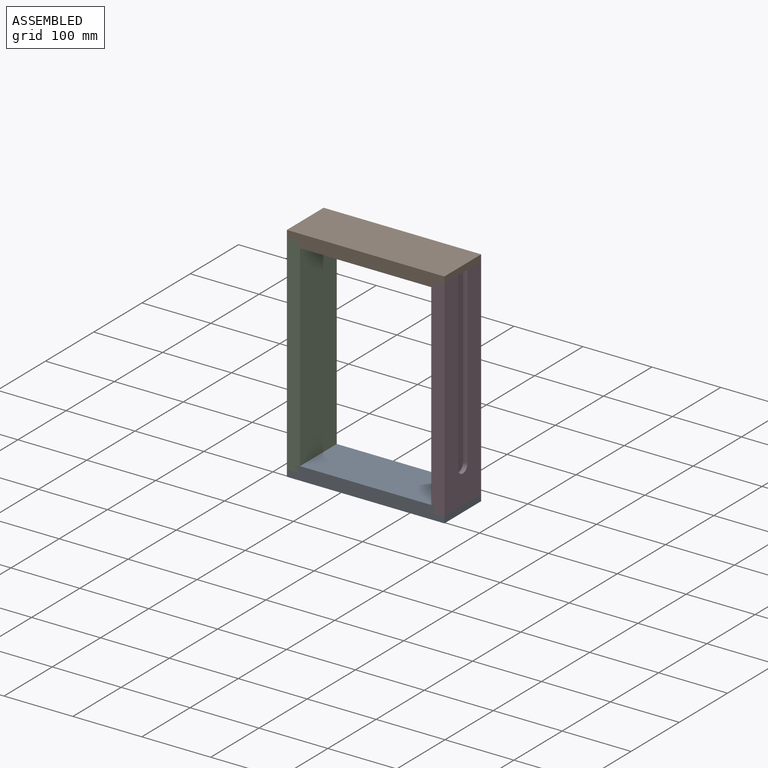
[diagram: assembled view]
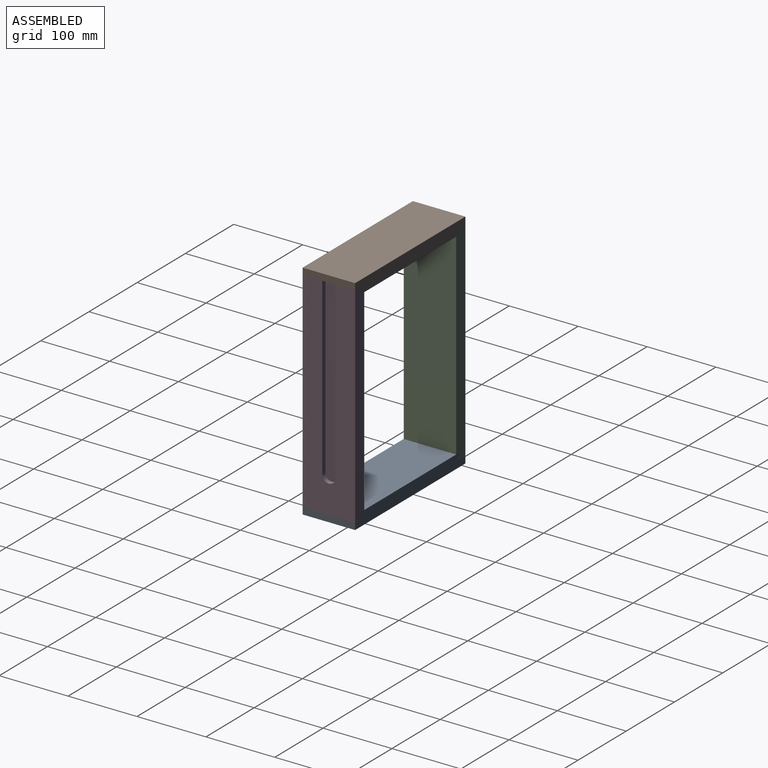
[diagram: assembled view, second angle]
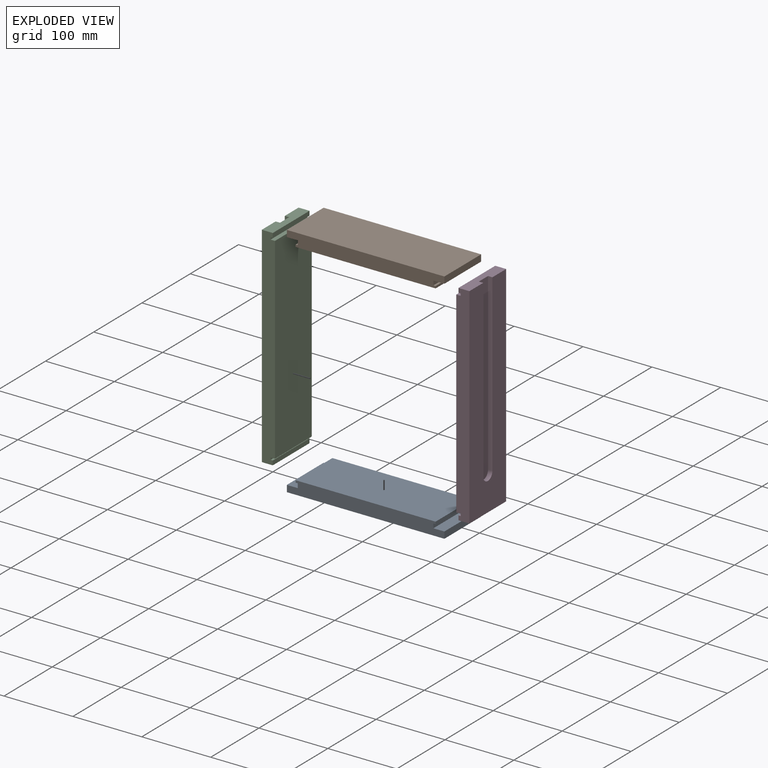
[diagram: exploded view]
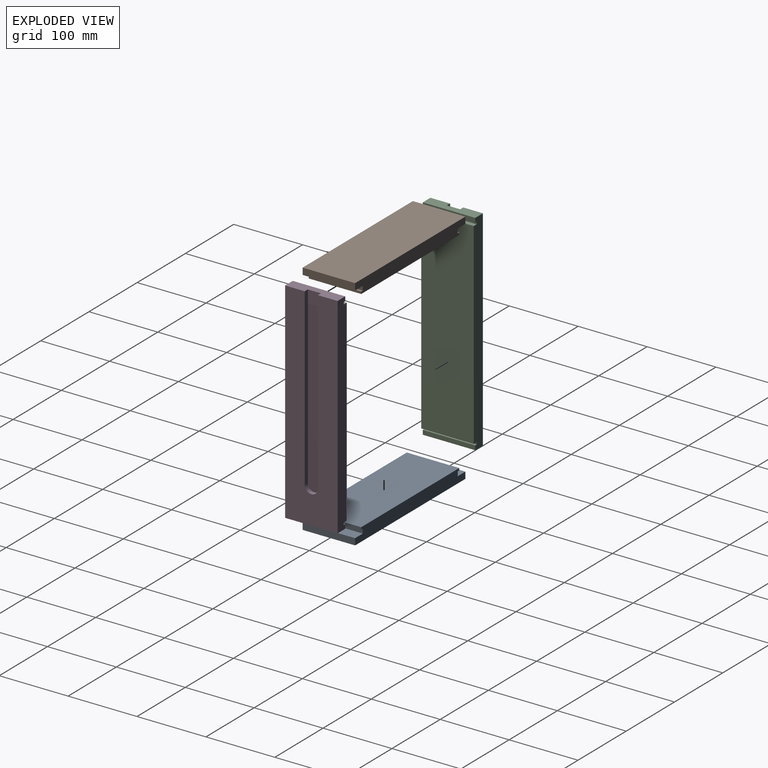
[diagram: exploded view, second angle]
ASSEMBLY  parts=4 mates=9
PART A: 14 faces, bbox 228.6x76.2x19.1 mm
  f0: plane 203.2x76.2mm, normal (0,0,1), area 15483.8mm2, adj f2,f3,f9,f13
  f1: plane 76.2x9.53mm, normal (-1,0,0), area 725.8mm2, adj f2,f3,f5,f11
  f2: plane 228.6x19.05mm, normal (0,1,0), area 4072.6mm2, adj f0,f1,f4,f5,f6,f7,f8,f9
  f3: plane 228.6x19.05mm, normal (0,-1,0), area 4072.6mm2, adj f0,f1,f4,f5,f6,f7,f8,f9
  f4: plane 76.2x9.53mm, normal (1,0,0), area 725.8mm2, adj f2,f3,f5,f7
  f5: plane 228.6x76.2mm, normal (0,0,-1), area 17419.3mm2, adj f1,f2,f3,f4
  f6: plane 76.2x3.18mm, normal (0,0,-1), area 241.9mm2, adj f2,f3,f8,f9
  f7: plane 76.2x15.88mm, normal (0,0,1), area 1209.7mm2, adj f2,f3,f4,f8
  f8: plane 76.2x6.35mm, normal (1,0,0), area 483.9mm2, adj f2,f3,f6,f7
  f9: plane 76.2x3.18mm, normal (1,0,0), area 241.9mm2, adj f0,f2,f3,f6
  f10: plane 76.2x3.18mm, normal (0,0,-1), area 241.9mm2, adj f2,f3,f12,f13
  f11: plane 76.2x15.88mm, normal (0,0,1), area 1209.7mm2, adj f1,f2,f3,f12
  f12: plane 76.2x6.35mm, normal (-1,0,0), area 483.9mm2, adj f2,f3,f10,f11
  f13: plane 76.2x3.18mm, normal (-1,0,0), area 241.9mm2, adj f0,f2,f3,f10
PART B: same geometry as A
PART C: 18 faces, bbox 304.8x76.2x19.1 mm
  f0: plane 304.8x19.05mm, normal (0,1,0), area 5725.8mm2, adj f2,f3,f4,f5,f6,f7,f8,f9
  f1: plane 304.8x19.05mm, normal (0,-1,0), area 5725.8mm2, adj f2,f3,f4,f5,f6,f7,f8,f9
  f2: plane 76.2x15.88mm, normal (1,0,0), area 1209.7mm2, adj f0,f1,f5,f13
  f3: plane 285.75x76.2mm, normal (0,0,1), area 21774.1mm2, adj f0,f1,f7,f11
  f4: plane 76.2x15.88mm, normal (-1,0,0), area 1088.7mm2, adj f0,f1,f5,f9,f15,f16,f17
  f5: plane 304.8x76.2mm, normal (0,0,-1), area 18244.5mm2, adj f0,f1,f2,f4,f14,f15,f16
  f6: plane 76.2x3.18mm, normal (1,0,0), area 241.9mm2, adj f0,f1,f8,f9
  f7: plane 76.2x6.35mm, normal (-1,0,0), area 483.9mm2, adj f0,f1,f3,f8
  f8: plane 76.2x3.18mm, normal (0,0,1), area 241.9mm2, adj f0,f1,f6,f7
  f9: plane 76.2x6.35mm, normal (0,0,1), area 483.9mm2, adj f0,f1,f4,f6
  f10: plane 76.2x3.18mm, normal (-1,0,0), area 241.9mm2, adj f0,f1,f12,f13
  f11: plane 76.2x6.35mm, normal (1,0,0), area 483.9mm2, adj f0,f1,f3,f12
  f12: plane 76.2x3.18mm, normal (0,0,1), area 241.9mm2, adj f0,f1,f10,f11
  f13: plane 76.2x6.35mm, normal (0,0,1), area 483.9mm2, adj f0,f1,f2,f10
  f14: cylinder r=9.53mm len=19.05mm, axis (0,0,-1), area 190mm2, adj f5,f15,f16,f17
  f15: plane 254x6.35mm, normal (0,1,0), area 1612.9mm2, adj f4,f5,f14,f17
  f16: plane 254x6.35mm, normal (0,-1,0), area 1612.9mm2, adj f4,f5,f14,f17
  f17: plane 263.53x19.05mm, normal (0,0,-1), area 4981.2mm2, adj f4,f14,f15,f16
PART D: same geometry as C
PLACE A t=(-1.19,60.39,21.57)mm
PLACE B rot(axis=(1,0,0),180deg) t=(-1.19,20.66,345.42)mm
PLACE C rot(axis=(0,1,0),90deg) t=(-111.26,23.94,297.74)mm
PLACE D rot(axis=(0.71,0,-0.71),180deg) t=(117.34,57.11,297.74)mm
MATE planar B.f8 <-> D.f9  axis (1,0,0) through (101.47,40.53,332.72)mm
MATE planar B.f12 <-> C.f9  axis (-1,0,0) through (-95.38,40.53,332.72)mm
MATE planar D.f2 <-> A.f7  axis (0,0,-1) through (109.41,40.53,31.1)mm
MATE planar B.f7 <-> D.f4  axis (0,0,-1) through (109.41,40.53,335.9)mm
MATE planar B.f3 <-> C.f0  axis (0,1,0) through (3.04,78.63,336.21)mm
MATE planar D.f13 <-> A.f8  axis (-1,0,0) through (101.47,40.53,34.27)mm
MATE planar D.f0 <-> A.f3  axis (0,-1,0) through (107.92,2.43,183.5)mm
MATE planar B.f11 <-> C.f4  axis (0,0,-1) through (-103.32,40.53,335.9)mm
MATE planar D.f0 <-> B.f2  axis (0,-1,0) through (104.64,2.43,326.37)mm
